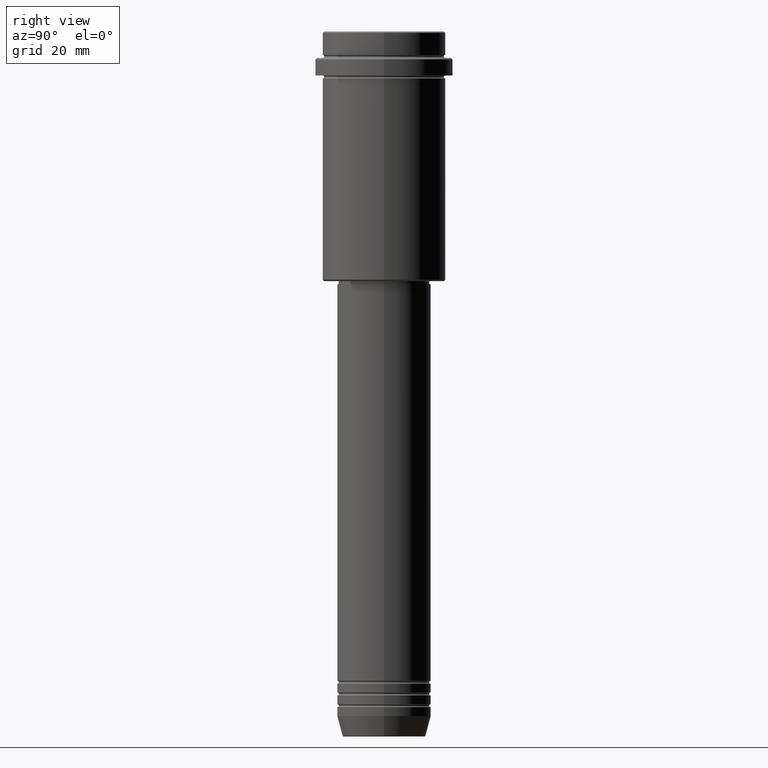
[diagram: clean part render]
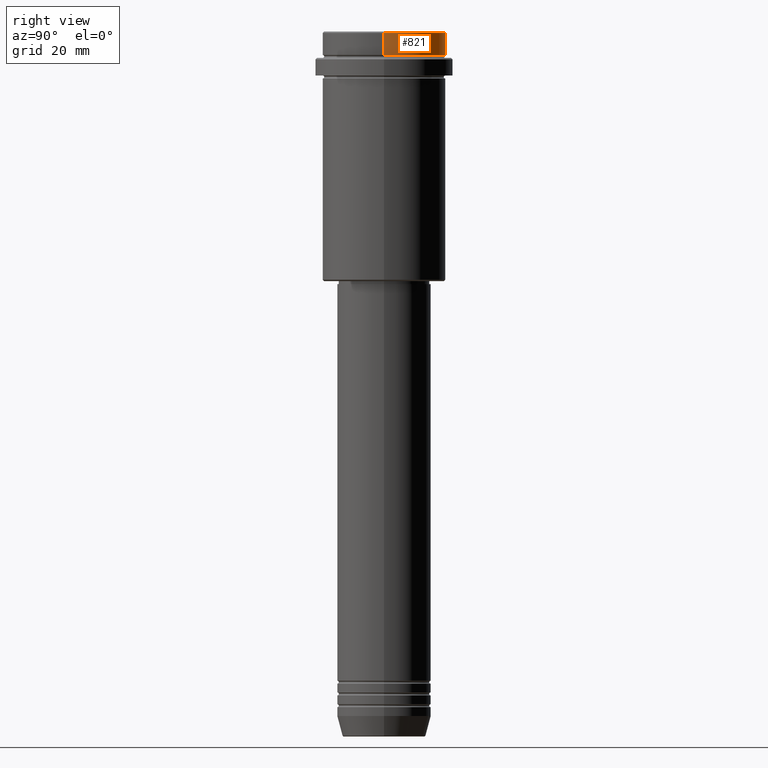
[diagram: same view with one face highlighted and labeled with its STEP entity id]
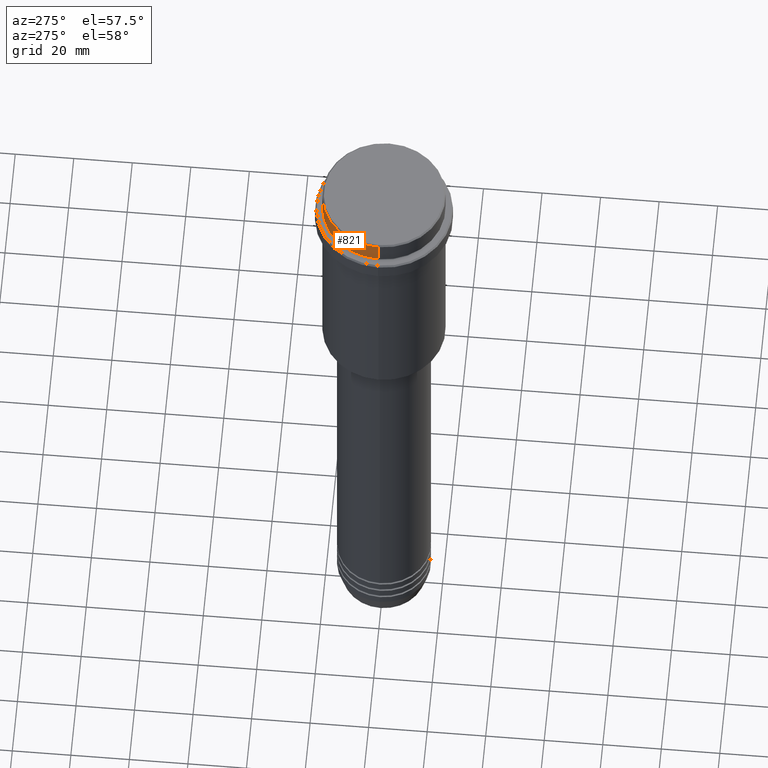
[diagram: same view with one face highlighted and labeled with its STEP entity id]
A machine part, right view. The second image highlights one B-rep face of the part: STEP entity #821.
A second angle (auxiliary view) of the same face is appended — the face is thin or edge-on in the first view.
In plain terms, the highlighted cylindrical surface (partial cylindrical patch) has radius 21 mm, axis along (-0, -0, 1).
Its self-contained STEP definition (entity closure, byte-faithful):
#99 = ORIENTED_EDGE ( 'NONE', *, *, #492, .T. ) ;
#128 = AXIS2_PLACEMENT_3D ( 'NONE', #804, #673, #272 ) ;
#170 = CARTESIAN_POINT ( 'NONE',  ( 21.00000000000000000, 0.000000000000000000, -0.5000000000000663913 ) ) ;
#211 = VERTEX_POINT ( 'NONE', #170 ) ;
#247 = VERTEX_POINT ( 'NONE', #1167 ) ;
#272 = DIRECTION ( 'NONE',  ( 1.000000000000000000, 0.000000000000000000, 0.000000000000000000 ) ) ;
#276 = DIRECTION ( 'NONE',  ( -0.000000000000000000, -0.000000000000000000, 1.000000000000000000 ) ) ;
#300 = CIRCLE ( 'NONE', #423, 21.00000000000000000 ) ;
#310 = DIRECTION ( 'NONE',  ( -0.000000000000000000, -0.000000000000000000, 1.000000000000000000 ) ) ;
#312 = DIRECTION ( 'NONE',  ( -0.000000000000000000, -0.000000000000000000, 1.000000000000000000 ) ) ;
#319 = CIRCLE ( 'NONE', #128, 21.00000000000000000 ) ;
#363 = LINE ( 'NONE', #1008, #1135 ) ;
#412 = CYLINDRICAL_SURFACE ( 'NONE', #974, 21.00000000000000000 ) ;
#423 = AXIS2_PLACEMENT_3D ( 'NONE', #728, #310, #1172 ) ;
#445 = VERTEX_POINT ( 'NONE', #897 ) ;
#447 = ORIENTED_EDGE ( 'NONE', *, *, #712, .T. ) ;
#492 = EDGE_CURVE ( 'NONE', #247, #211, #319, .T. ) ;
#622 = CARTESIAN_POINT ( 'NONE',  ( -21.00000000000000000, 2.571758278209441661E-15, 0.000000000000000000 ) ) ;
#645 = EDGE_CURVE ( 'NONE', #1191, #211, #363, .T. ) ;
#662 = EDGE_LOOP ( 'NONE', ( #676, #447, #99, #1052 ) ) ;
#673 = DIRECTION ( 'NONE',  ( 0.000000000000000000, 0.000000000000000000, -1.000000000000000000 ) ) ;
#676 = ORIENTED_EDGE ( 'NONE', *, *, #968, .T. ) ;
#712 = EDGE_CURVE ( 'NONE', #445, #247, #814, .T. ) ;
#728 = CARTESIAN_POINT ( 'NONE',  ( 0.000000000000000000, 0.000000000000000000, -7.999999999999998224 ) ) ;
#789 = DIRECTION ( 'NONE',  ( -0.000000000000000000, -0.000000000000000000, 1.000000000000000000 ) ) ;
#804 = CARTESIAN_POINT ( 'NONE',  ( 0.000000000000000000, 0.000000000000000000, -0.5000000000000663913 ) ) ;
#814 = LINE ( 'NONE', #622, #1051 ) ;
#821 = ADVANCED_FACE ( 'NONE', ( #1402 ), #412, .T. ) ;
#897 = CARTESIAN_POINT ( 'NONE',  ( -21.00000000000000000, 2.571758278209441661E-15, -7.999999999999998224 ) ) ;
#968 = EDGE_CURVE ( 'NONE', #1191, #445, #300, .T. ) ;
#974 = AXIS2_PLACEMENT_3D ( 'NONE', #1082, #312, #1293 ) ;
#1008 = CARTESIAN_POINT ( 'NONE',  ( 21.00000000000000000, 0.000000000000000000, 0.000000000000000000 ) ) ;
#1051 = VECTOR ( 'NONE', #276, 1000.000000000000000 ) ;
#1052 = ORIENTED_EDGE ( 'NONE', *, *, #645, .F. ) ;
#1082 = CARTESIAN_POINT ( 'NONE',  ( 0.000000000000000000, 0.000000000000000000, 0.000000000000000000 ) ) ;
#1106 = CARTESIAN_POINT ( 'NONE',  ( 21.00000000000000000, 0.000000000000000000, -7.999999999999998224 ) ) ;
#1135 = VECTOR ( 'NONE', #789, 1000.000000000000000 ) ;
#1167 = CARTESIAN_POINT ( 'NONE',  ( -21.00000000000000000, 2.571758278209441661E-15, -0.5000000000000663913 ) ) ;
#1172 = DIRECTION ( 'NONE',  ( 1.000000000000000000, 0.000000000000000000, 0.000000000000000000 ) ) ;
#1191 = VERTEX_POINT ( 'NONE', #1106 ) ;
#1293 = DIRECTION ( 'NONE',  ( 1.000000000000000000, 0.000000000000000000, 0.000000000000000000 ) ) ;
#1402 = FACE_OUTER_BOUND ( 'NONE', #662, .T. ) ;